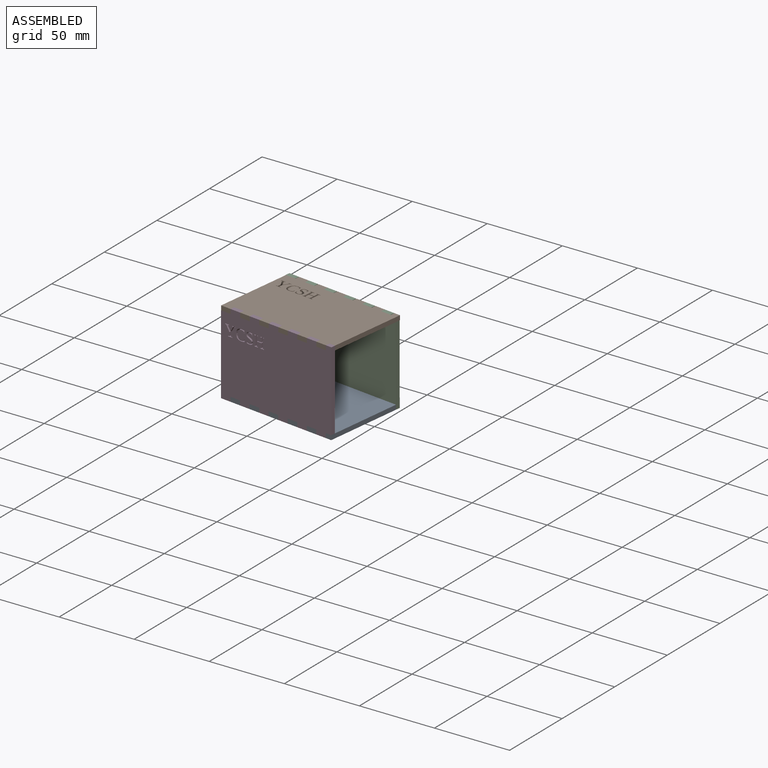
[diagram: assembled view]
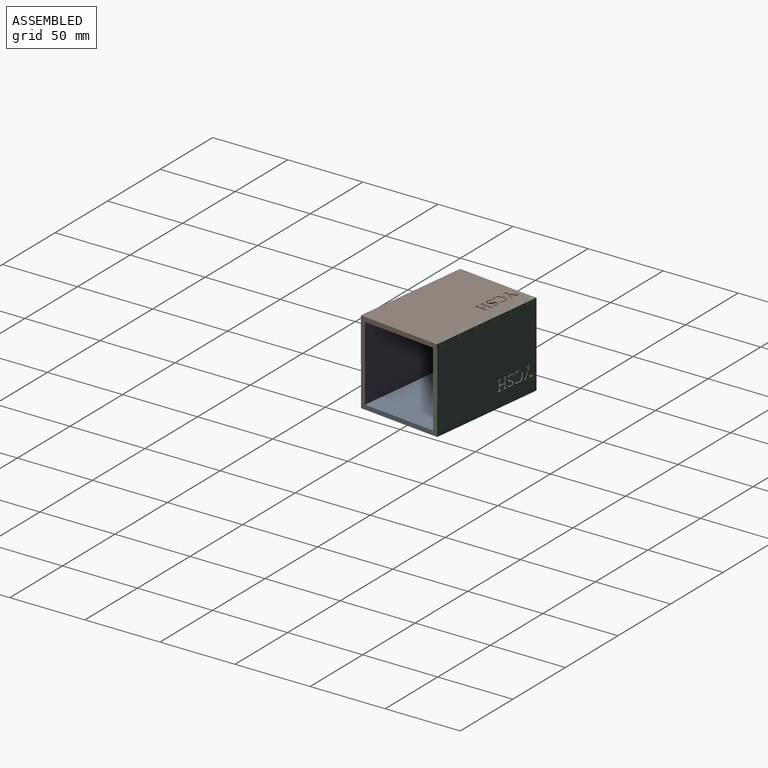
[diagram: assembled view, second angle]
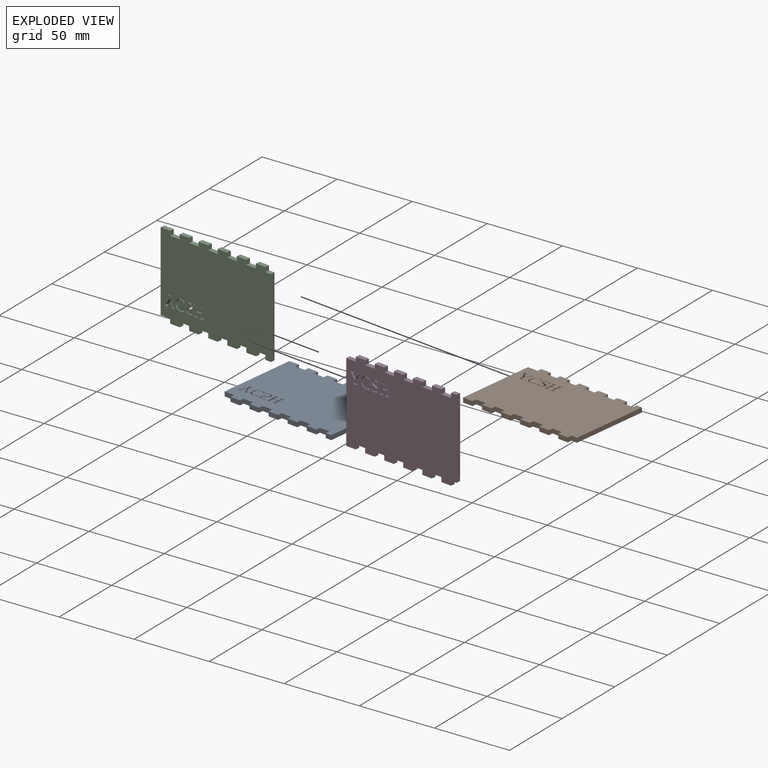
[diagram: exploded view]
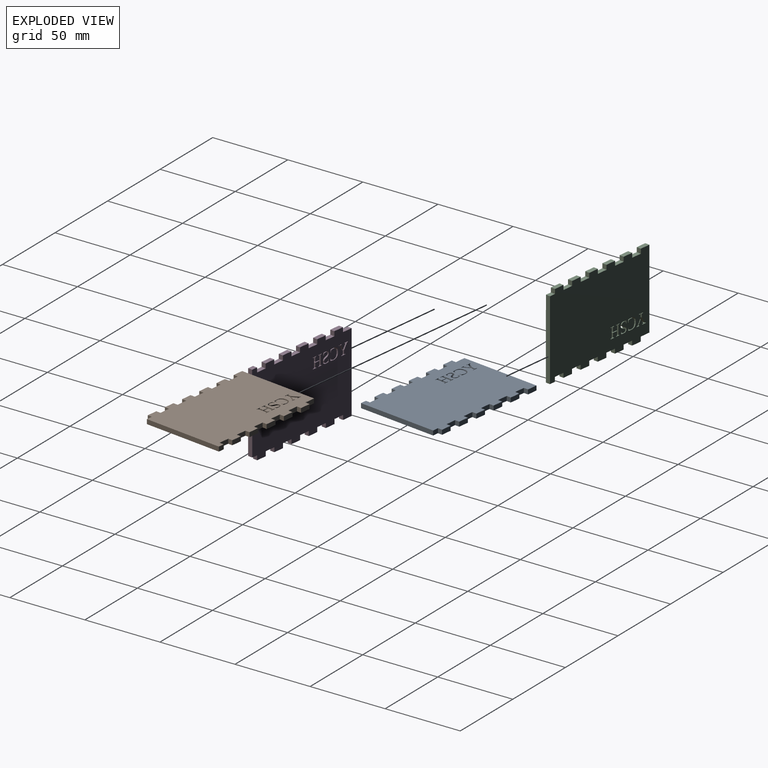
[diagram: exploded view, second angle]
ASSEMBLY  parts=4 mates=3
PART A: 155 faces, bbox 81x55.9x3 mm
  f0: plane 3x0.28mm, normal (1,0,0), area 0.9mm2, adj f1,f152,f153,f154
  f1: plane 3x2.87mm, normal (0,-1,0), area 8.6mm2, adj f0,f2,f153,f154
  f2: plane 3x0.28mm, normal (-1,0,0), area 0.9mm2, adj f1,f3,f153,f154
  f3: plane 3x0.92mm, normal (-0.15,0.99,0), area 2.8mm2, adj f2,f4,f153,f154
  f4: plane 3.02x3mm, normal (-1,0,0), area 9mm2, adj f3,f5,f153,f154
  f5: plane 3.37x3mm, normal (0,-1,0), area 10.1mm2, adj f4,f6,f153,f154
  f6: plane 3.02x3mm, normal (1,0,0), area 9mm2, adj f5,f7,f153,f154
  f7: plane 3x0.92mm, normal (0.15,0.99,0), area 2.8mm2, adj f6,f8,f153,f154
  f8: plane 3x0.28mm, normal (1,0,0), area 0.9mm2, adj f7,f9,f153,f154
  f9: plane 3x2.86mm, normal (0,-1,0), area 8.6mm2, adj f8,f10,f153,f154
  f10: plane 3x0.28mm, normal (-1,0,0), area 0.9mm2, adj f9,f11,f153,f154
  f11: plane 3x0.92mm, normal (-0.15,0.99,0), area 2.8mm2, adj f10,f12,f153,f154
  f12: plane 6.31x3mm, normal (-1,0,0), area 18.9mm2, adj f11,f13,f153,f154
  f13: plane 3x0.92mm, normal (-0.15,-0.99,0), area 2.8mm2, adj f12,f14,f153,f154
  f14: plane 3x0.28mm, normal (-1,0,0), area 0.9mm2, adj f13,f15,f153,f154
  f15: plane 3x2.86mm, normal (0,1,0), area 8.6mm2, adj f14,f16,f153,f154
  f16: plane 3x0.28mm, normal (1,0,0), area 0.9mm2, adj f15,f17,f153,f154
  f17: plane 3x0.92mm, normal (0.15,-0.99,0), area 2.8mm2, adj f16,f18,f153,f154
  f18: plane 3x2.81mm, normal (1,0,0), area 8.4mm2, adj f17,f19,f153,f154
  f19: plane 3.37x3mm, normal (0,1,0), area 10.1mm2, adj f18,f20,f153,f154
  f20: plane 3x2.81mm, normal (-1,0,0), area 8.4mm2, adj f19,f21,f153,f154
  f21: plane 3x0.92mm, normal (-0.15,-0.99,0), area 2.8mm2, adj f20,f22,f153,f154
  f22: plane 3x0.28mm, normal (-1,0,0), area 0.9mm2, adj f21,f23,f153,f154
  f23: plane 3x2.87mm, normal (0,1,0), area 8.6mm2, adj f22,f24,f153,f154
  f24: plane 3x0.28mm, normal (1,0,0), area 0.9mm2, adj f23,f25,f153,f154
  f25: plane 3x0.92mm, normal (0.15,-0.99,0), area 2.8mm2, adj f24,f26,f153,f154
  f26: plane 6.31x3mm, normal (1,0,0), area 18.9mm2, adj f25,f152,f153,f154
  f27: plane 3x0.35mm, normal (0,1,0), area 1mm2, adj f28,f148,f153,f154
  f28: plane 3x1.65mm, normal (1,0,0), area 5mm2, adj f27,f29,f153,f154
  f29: extruded ~3x1.04mm, area 3.2mm2, adj f28,f30,f153,f154
  f30: extruded ~3x1.16mm, area 3.5mm2, adj f29,f31,f153,f154
  f31: extruded ~3x1.83mm, area 5.9mm2, adj f30,f32,f153,f154
  f32: extruded ~3x1.6mm, area 5.3mm2, adj f31,f33,f153,f154
  f33: extruded ~3x0.86mm, area 2.7mm2, adj f32,f34,f153,f154
  f34: extruded ~3x0.59mm, area 2.2mm2, adj f33,f35,f153,f154
  f35: extruded ~3x0.6mm, area 2.2mm2, adj f34,f36,f153,f154
  f36: extruded ~3x0.69mm, area 2.2mm2, adj f35,f37,f153,f154
  f37: extruded ~3x0.69mm, area 2.2mm2, adj f36,f38,f153,f154
  f38: extruded ~3x0.6mm, area 2mm2, adj f37,f39,f153,f154
  f39: extruded ~3x0.43mm, area 1.8mm2, adj f38,f40,f153,f154
  f40: extruded ~3x0.58mm, area 1.8mm2, adj f39,f41,f153,f154
  f41: extruded ~3x0.8mm, area 2.8mm2, adj f40,f42,f153,f154
  f42: extruded ~3x1.12mm, area 3.5mm2, adj f41,f43,f153,f154
  f43: extruded ~3x1.34mm, area 4.3mm2, adj f42,f44,f153,f154
  f44: plane 3x0.88mm, normal (0.98,-0.21,0), area 2.7mm2, adj f43,f45,f153,f154
  f45: plane 3x0.35mm, normal (0,-1,0), area 1mm2, adj f44,f46,f153,f154
  f46: plane 3x1.49mm, normal (-1,0,0), area 4.5mm2, adj f45,f47,f153,f154
  f47: extruded ~3x1.88mm, area 5.7mm2, adj f46,f48,f153,f154
  f48: extruded ~3x1.78mm, area 5.6mm2, adj f47,f49,f153,f154
  f49: extruded ~3x1.34mm, area 4.6mm2, adj f48,f50,f153,f154
  f50: extruded ~3x0.84mm, area 2.6mm2, adj f49,f51,f153,f154
  f51: extruded ~3x0.57mm, area 2.1mm2, adj f50,f52,f153,f154
  f52: extruded ~3x0.6mm, area 2.1mm2, adj f51,f53,f153,f154
  f53: extruded ~3x0.69mm, area 2.2mm2, adj f52,f54,f153,f154
  f54: extruded ~3x0.69mm, area 2.2mm2, adj f53,f55,f153,f154
  f55: extruded ~3x0.6mm, area 2mm2, adj f54,f56,f153,f154
  f56: extruded ~3x0.43mm, area 1.8mm2, adj f55,f57,f153,f154
  f57: extruded ~3x0.64mm, area 2mm2, adj f56,f58,f153,f154
  f58: extruded ~3x1.05mm, area 3.5mm2, adj f57,f59,f153,f154
  f59: extruded ~3x1.17mm, area 3.8mm2, adj f58,f60,f153,f154
  f60: extruded ~3x0.95mm, area 2.9mm2, adj f59,f61,f153,f154
  f61: extruded ~3x0.68mm, area 2.5mm2, adj f60,f148,f153,f154
  f62: extruded ~3x2.71mm, area 8.8mm2, adj f63,f149,f153,f154
  f63: extruded ~3x2.52mm, area 7.7mm2, adj f62,f64,f153,f154
  f64: plane 3x1.68mm, normal (-1,-0.02,0), area 5mm2, adj f63,f65,f153,f154
  f65: plane 3x0.35mm, normal (0,1,0), area 1mm2, adj f64,f66,f153,f154
  f66: plane 3x1.07mm, normal (0.98,0.18,0), area 3.3mm2, adj f65,f67,f153,f154
  f67: extruded ~3x0.85mm, area 2.8mm2, adj f66,f68,f153,f154
  f68: extruded ~3x1.15mm, area 3.5mm2, adj f67,f69,f153,f154
  f69: extruded ~3x1.92mm, area 6.5mm2, adj f68,f70,f153,f154
  f70: extruded ~3x2.38mm, area 7.5mm2, adj f69,f71,f153,f154
  f71: extruded ~3x2.5mm, area 7.9mm2, adj f70,f72,f153,f154
  f72: extruded ~3x2mm, area 6.7mm2, adj f71,f73,f153,f154
  f73: extruded ~3x1.01mm, area 3mm2, adj f72,f74,f153,f154
  f74: extruded ~3x0.87mm, area 2.8mm2, adj f73,f75,f153,f154
  f75: plane 3x0.93mm, normal (0.99,-0.17,0), area 2.8mm2, adj f74,f76,f153,f154
  f76: plane 3x0.35mm, normal (0,-1,0), area 1.1mm2, adj f75,f77,f153,f154
  f77: plane 3x1.56mm, normal (-1,0.02,0), area 4.7mm2, adj f76,f78,f153,f154
  f78: extruded ~3x2.4mm, area 7.2mm2, adj f77,f79,f153,f154
  f79: extruded ~3x2.77mm, area 9mm2, adj f78,f80,f153,f154
  f80: extruded ~3x2.79mm, area 9.1mm2, adj f79,f149,f153,f154
  f81: plane 3x2.39mm, normal (-1,0,0), area 7.2mm2, adj f82,f150,f153,f154
  f82: plane 3.92x3mm, normal (-0.86,-0.52,0), area 13.7mm2, adj f81,f83,f153,f154
  f83: plane 3x0.78mm, normal (-0.17,-0.98,0), area 2.4mm2, adj f82,f84,f153,f154
  f84: plane 3x0.28mm, normal (-1,0,0), area 0.9mm2, adj f83,f85,f153,f154
  f85: plane 3x2.33mm, normal (0,1,0), area 7mm2, adj f84,f86,f153,f154
  f86: plane 3x0.28mm, normal (1,0,0), area 0.9mm2, adj f85,f87,f153,f154
  f87: plane 3x0.91mm, normal (0.15,-0.99,0), area 2.8mm2, adj f86,f88,f153,f154
  f88: plane 3.3x3mm, normal (0.86,0.51,0), area 11.5mm2, adj f87,f89,f153,f154
  f89: plane 3.3x3mm, normal (-0.85,0.53,0), area 11.7mm2, adj f88,f90,f153,f154
  f90: plane 3x0.96mm, normal (-0.14,-0.99,0), area 2.9mm2, adj f89,f91,f153,f154
  f91: plane 3x0.28mm, normal (-1,0,0), area 0.9mm2, adj f90,f92,f153,f154
  f92: plane 3.03x3mm, normal (0,1,0), area 9.1mm2, adj f91,f93,f153,f154
  f93: plane 3x0.28mm, normal (1,0,0), area 0.9mm2, adj f92,f94,f153,f154
  f94: plane 3x0.81mm, normal (0.17,-0.99,0), area 2.5mm2, adj f93,f95,f153,f154
  f95: plane 3.95x3mm, normal (0.84,-0.54,0), area 14mm2, adj f94,f96,f153,f154
  f96: plane 3x2.36mm, normal (1,0,0), area 7.1mm2, adj f95,f97,f153,f154
  f97: plane 3x1.14mm, normal (0.13,0.99,0), area 3.4mm2, adj f96,f98,f153,f154
  f98: plane 3x0.28mm, normal (1,0,0), area 0.9mm2, adj f97,f99,f153,f154
  f99: plane 3.3x3mm, normal (0,-1,0), area 9.9mm2, adj f98,f100,f153,f154
  f100: plane 3x0.28mm, normal (-1,0,0), area 0.9mm2, adj f99,f150,f153,f154
  f101: plane 52.88x3mm, normal (-1,0,0), area 158.6mm2, adj f102,f151,f153,f154
  f102: plane 7x3mm, normal (0,-1,0), area 21mm2, adj f101,f103,f153,f154
  f103: plane 3x3mm, normal (-1,0,0), area 9mm2, adj f102,f104,f153,f154
  f104: plane 7x3mm, normal (0,-1,0), area 21mm2, adj f103,f105,f153,f154
  f105: plane 3x3mm, normal (1,0,0), area 9mm2, adj f104,f106,f153,f154
  f106: plane 7x3mm, normal (0,-1,0), area 21mm2, adj f105,f107,f153,f154
  f107: plane 3x3mm, normal (-1,0,0), area 9mm2, adj f106,f108,f153,f154
  f108: plane 7x3mm, normal (0,-1,0), area 21mm2, adj f107,f109,f153,f154
  f109: plane 3x3mm, normal (1,0,0), area 9mm2, adj f108,f110,f153,f154
  f110: plane 7x3mm, normal (0,-1,0), area 21mm2, adj f109,f111,f153,f154
  f111: plane 3x3mm, normal (-1,0,0), area 9mm2, adj f110,f112,f153,f154
  f112: plane 7x3mm, normal (0,-1,0), area 21mm2, adj f111,f113,f153,f154
  f113: plane 3x3mm, normal (1,0,0), area 9mm2, adj f112,f114,f153,f154
  f114: plane 7x3mm, normal (0,-1,0), area 21mm2, adj f113,f115,f153,f154
  f115: plane 3x3mm, normal (-1,0,0), area 9mm2, adj f114,f116,f153,f154
  f116: plane 7x3mm, normal (0,-1,0), area 21mm2, adj f115,f117,f153,f154
  f117: plane 3x3mm, normal (1,0,0), area 9mm2, adj f116,f118,f153,f154
  f118: plane 7x3mm, normal (0,-1,0), area 21mm2, adj f117,f119,f153,f154
  f119: plane 3x3mm, normal (-1,0,0), area 9mm2, adj f118,f120,f153,f154
  f120: plane 7x3mm, normal (0,-1,0), area 21mm2, adj f119,f121,f153,f154
  f121: plane 3x3mm, normal (1,0,0), area 9mm2, adj f120,f122,f153,f154
  f122: plane 7x3mm, normal (0,-1,0), area 21mm2, adj f121,f123,f153,f154
  f123: plane 3x3mm, normal (-1,0,0), area 9mm2, adj f122,f124,f153,f154
  f124: plane 4x3mm, normal (0,-1,0), area 12mm2, adj f123,f125,f153,f154
  f125: plane 52.88x3mm, normal (1,0,0), area 158.6mm2, adj f124,f126,f153,f154
  f126: plane 4x3mm, normal (0,1,0), area 12mm2, adj f125,f127,f153,f154
  f127: plane 3x3mm, normal (1,0,0), area 9mm2, adj f126,f128,f153,f154
  f128: plane 7x3mm, normal (0,1,0), area 21mm2, adj f127,f129,f153,f154
  f129: plane 3x3mm, normal (-1,0,0), area 9mm2, adj f128,f130,f153,f154
  f130: plane 7x3mm, normal (0,1,0), area 21mm2, adj f129,f131,f153,f154
  f131: plane 3x3mm, normal (1,0,0), area 9mm2, adj f130,f132,f153,f154
  f132: plane 7x3mm, normal (0,1,0), area 21mm2, adj f131,f133,f153,f154
  f133: plane 3x3mm, normal (-1,0,0), area 9mm2, adj f132,f134,f153,f154
  f134: plane 7x3mm, normal (0,1,0), area 21mm2, adj f133,f135,f153,f154
  f135: plane 3x3mm, normal (1,0,0), area 9mm2, adj f134,f136,f153,f154
  f136: plane 7x3mm, normal (0,1,0), area 21mm2, adj f135,f137,f153,f154
  f137: plane 3x3mm, normal (-1,0,0), area 9mm2, adj f136,f138,f153,f154
  f138: plane 7x3mm, normal (0,1,0), area 21mm2, adj f137,f139,f153,f154
  f139: plane 3x3mm, normal (1,0,0), area 9mm2, adj f138,f140,f153,f154
  f140: plane 7x3mm, normal (0,1,0), area 21mm2, adj f139,f141,f153,f154
  f141: plane 3x3mm, normal (-1,0,0), area 9mm2, adj f140,f142,f153,f154
  f142: plane 7x3mm, normal (0,1,0), area 21mm2, adj f141,f143,f153,f154
  f143: plane 3x3mm, normal (1,0,0), area 9mm2, adj f142,f144,f153,f154
  f144: plane 7x3mm, normal (0,1,0), area 21mm2, adj f143,f145,f153,f154
  f145: plane 3x3mm, normal (-1,0,0), area 9mm2, adj f144,f146,f153,f154
  f146: plane 7x3mm, normal (0,1,0), area 21mm2, adj f145,f147,f153,f154
  f147: plane 3x3mm, normal (1,0,0), area 9mm2, adj f146,f151,f153,f154
  f148: plane 3x0.97mm, normal (-0.98,0.19,0), area 2.9mm2, adj f27,f61,f153,f154
  f149: extruded ~3x2.66mm, area 8.7mm2, adj f62,f80,f153,f154
  f150: plane 3x1.14mm, normal (-0.13,0.99,0), area 3.4mm2, adj f81,f100,f153,f154
  f151: plane 6.93x3mm, normal (0,1,0), area 20.8mm2, adj f101,f147,f153,f154
  f152: plane 3x0.92mm, normal (0.15,0.99,0), area 2.8mm2, adj f0,f26,f153,f154
  f153: plane 81x55.88mm, normal (0,0,1), area 4224.8mm2, adj f0,f1,f2,f3,f4,f5,f6,f7
  f154: plane 81x55.88mm, normal (0,0,-1), area 4224.8mm2, adj f0,f1,f2,f3,f4,f5,f6,f7
PART B: same geometry as A
PART C: same geometry as A
PART D: same geometry as A
PLACE A rot(axis=(0,0,-1),7deg) t=(-43.83,51.65,-33.4)mm
PLACE B rot(axis=(-1,0.06,0),180deg) t=(-43.69,51.52,22.48)mm
PLACE C rot(axis=(1,-0.06,-0.06),90.2deg) t=(-40.49,79.34,-5.4)mm
PLACE D rot(axis=(-1,0.06,-0.06),90.2deg) t=(-47.18,23.86,-5.52)mm
MATE fastened C.f123 <-> A.f127  axis (-0.99,0.12,0) through (-4.45,73.38,-31.9)mm
MATE fastened D.f123 <-> B.f127  axis (-0.99,0.12,0) through (-10.77,20.88,20.98)mm
MATE fastened A.f103 <-> D.f147  axis (-0.99,0.12,0) through (-80.32,29.45,-31.9)mm
